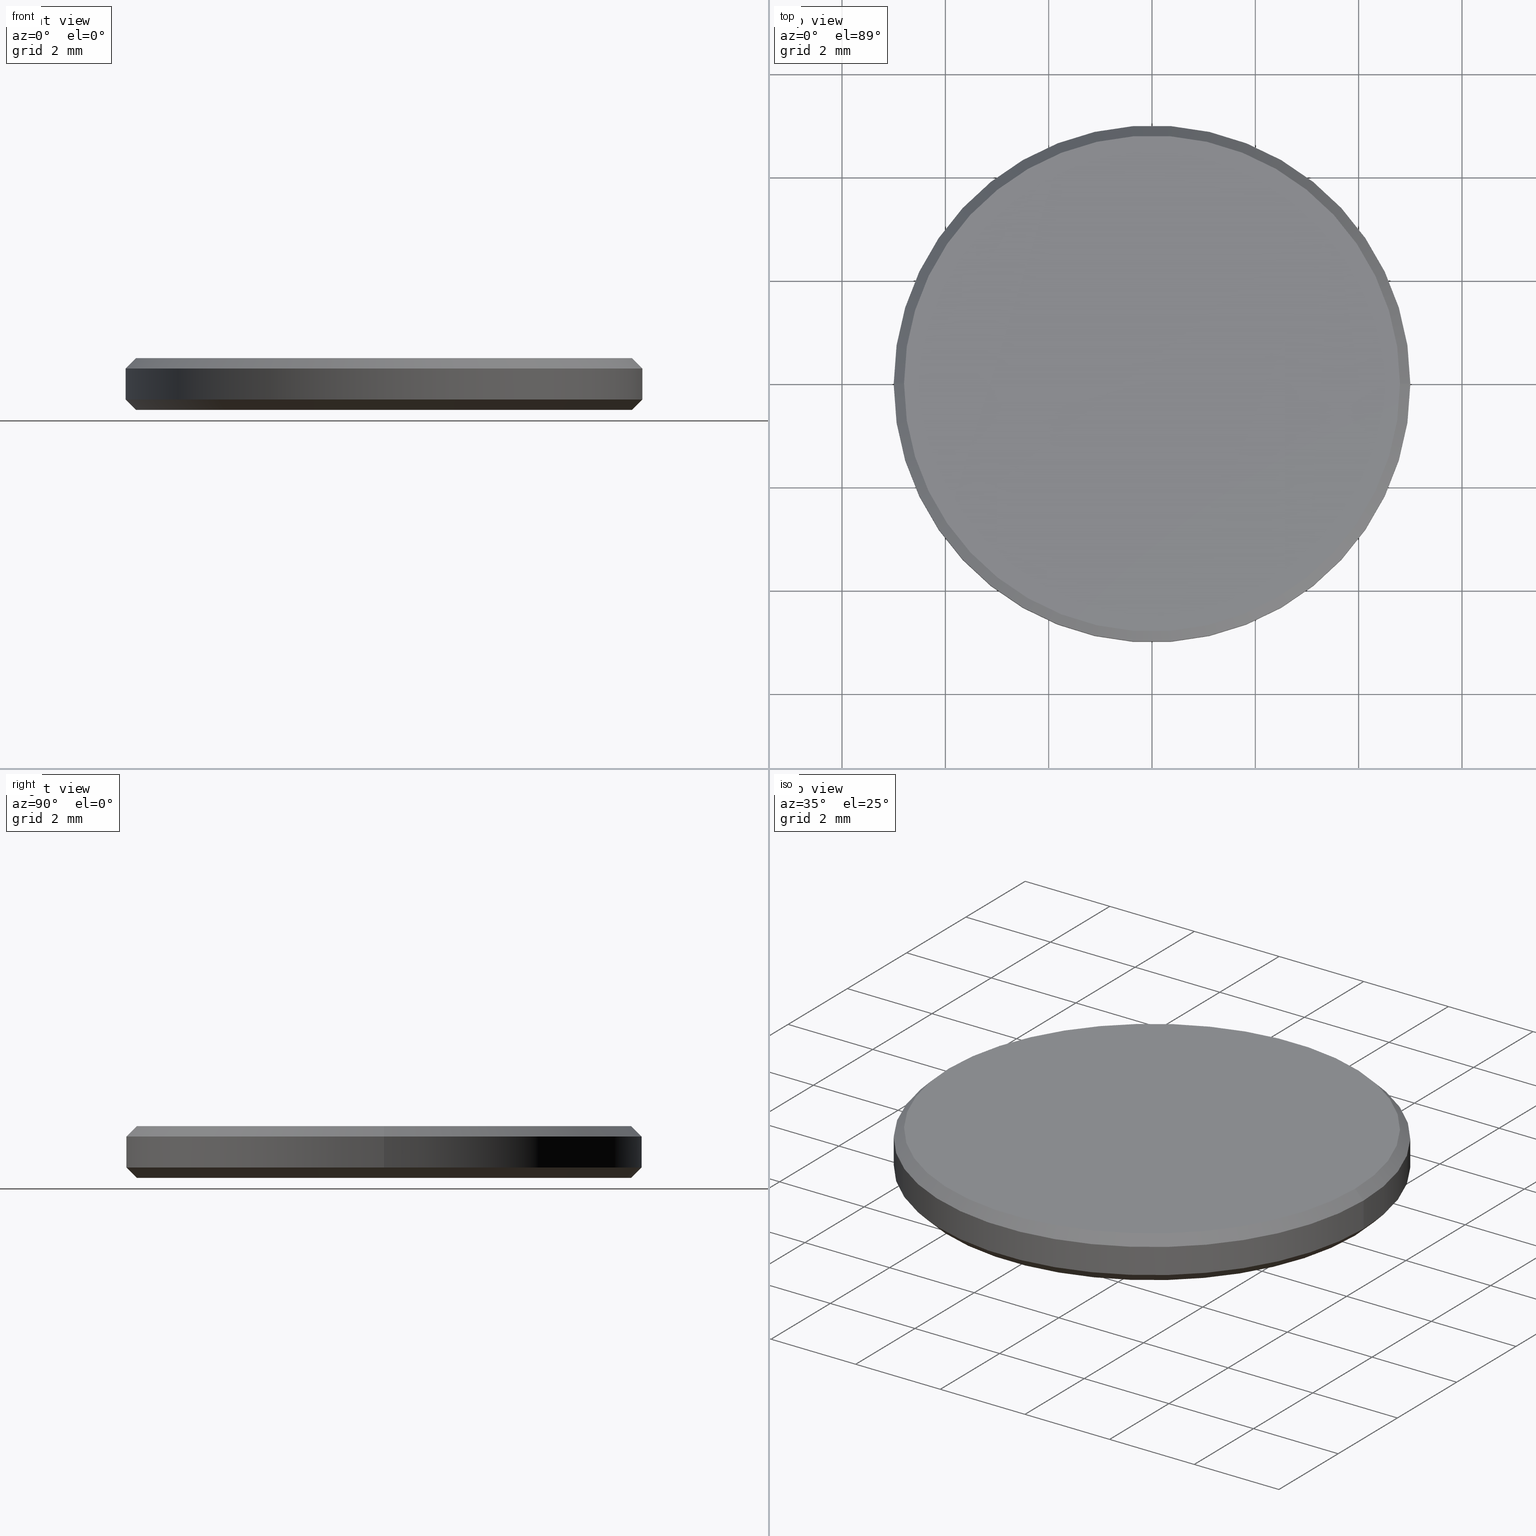
[diagram: canonical four-view strip — front | top / right | iso, engineering-drawing reading convention]
A machine part, canonical four-view strip (front | top / right | iso — engineering-drawing reading convention). The complete STEP part file that produces these views, byte-faithful:
ISO-10303-21;
HEADER;
FILE_DESCRIPTION (( 'STEP AP214' ),
    '1' );
FILE_NAME ('GNIF-070-4680-D10.STEP',
    '2024-07-19T14:44:08',
    ( '' ),
    ( '' ),
    'SwSTEP 2.0',
    'SolidWorks 2022',
    '' );
FILE_SCHEMA (( 'AUTOMOTIVE_DESIGN' ));
ENDSEC;

DATA;
#1 = CIRCLE ( 'NONE', #95, 5.000000000000000000 ) ;
#2 = ADVANCED_FACE ( 'NONE', ( #70 ), #137, .T. ) ;
#3 = DIRECTION ( 'NONE',  ( 0.000000000000000000, 0.000000000000000000, 1.000000000000000000 ) ) ;
#4 = PRESENTATION_STYLE_ASSIGNMENT (( #38 ) ) ;
#5 =( LENGTH_UNIT ( ) NAMED_UNIT ( * ) SI_UNIT ( .MILLI., .METRE. ) );
#6 = AXIS2_PLACEMENT_3D ( 'NONE', #80, #127, #113 ) ;
#7 = ADVANCED_FACE ( 'NONE', ( #93 ), #164, .T. ) ;
#8 =( LENGTH_UNIT ( ) NAMED_UNIT ( * ) SI_UNIT ( .MILLI., .METRE. ) );
#9 = ADVANCED_BREP_SHAPE_REPRESENTATION ( 'GNIF-070-4680-D10', ( #129, #53 ), #83 ) ;
#10 = EDGE_CURVE ( 'NONE', #31, #140, #55, .T. ) ;
#11 = DIRECTION ( 'NONE',  ( -0.000000000000000000, -0.000000000000000000, 1.000000000000000000 ) ) ;
#12 = VERTEX_POINT ( 'NONE', #229 ) ;
#13 = CARTESIAN_POINT ( 'NONE',  ( 0.000000000000000000, 0.000000000000000000, 0.1999999999999996503 ) ) ;
#14 = ORIENTED_EDGE ( 'NONE', *, *, #40, .F. ) ;
#15 = CARTESIAN_POINT ( 'NONE',  ( 0.000000000000000000, 0.000000000000000000, 1.000000000000000000 ) ) ;
#16 = ORIENTED_EDGE ( 'NONE', *, *, #185, .F. ) ;
#17 = DIRECTION ( 'NONE',  ( 1.000000000000000000, 0.000000000000000000, 0.000000000000000000 ) ) ;
#18 = EDGE_LOOP ( 'NONE', ( #67, #182, #162, #105 ) ) ;
#19 = PRODUCT_DEFINITION ( 'δ֪', '', #195, #84 ) ;
#20 = AXIS2_PLACEMENT_3D ( 'NONE', #79, #98, #36 ) ;
#21 = DIRECTION ( 'NONE',  ( -0.000000000000000000, -0.000000000000000000, -1.000000000000000000 ) ) ;
#22 = FILL_AREA_STYLE ('',( #59 ) ) ;
#23 = LINE ( 'NONE', #226, #158 ) ;
#24 = CONICAL_SURFACE ( 'NONE', #193, 5.000000000000000000, 0.7853981633974503884 ) ;
#25 = CARTESIAN_POINT ( 'NONE',  ( 0.000000000000000000, 0.000000000000000000, 1.000000000000000000 ) ) ;
#26 = EDGE_CURVE ( 'NONE', #140, #31, #94, .T. ) ;
#27 = DIRECTION ( 'NONE',  ( 1.000000000000000000, 0.000000000000000000, 0.000000000000000000 ) ) ;
#28 = CARTESIAN_POINT ( 'NONE',  ( -4.800000000000002487, 0.000000000000000000, 1.000000000000000000 ) ) ;
#29 = VERTEX_POINT ( 'NONE', #228 ) ;
#30 = ORIENTED_EDGE ( 'NONE', *, *, #183, .T. ) ;
#31 = VERTEX_POINT ( 'NONE', #169 ) ;
#32 = EDGE_LOOP ( 'NONE', ( #205, #106 ) ) ;
#33 = VECTOR ( 'NONE', #206, 1000.000000000000000 ) ;
#34 = DIRECTION ( 'NONE',  ( -0.000000000000000000, -0.000000000000000000, -1.000000000000000000 ) ) ;
#35 = CIRCLE ( 'NONE', #151, 4.800000000000002487 ) ;
#36 = DIRECTION ( 'NONE',  ( 1.000000000000000000, 0.000000000000000000, 0.000000000000000000 ) ) ;
#37 = CARTESIAN_POINT ( 'NONE',  ( 5.000000000000000000, 6.123233995736766282E-16, 1.000000000000000000 ) ) ;
#38 = SURFACE_STYLE_USAGE ( .BOTH. , #211 ) ;
#39 = DIRECTION ( 'NONE',  ( -0.000000000000000000, -0.000000000000000000, -1.000000000000000000 ) ) ;
#40 = EDGE_CURVE ( 'NONE', #123, #12, #223, .T. ) ;
#41 = DIRECTION ( 'NONE',  ( -1.000000000000000000, 0.000000000000000000, 0.000000000000000000 ) ) ;
#42 = UNCERTAINTY_MEASURE_WITH_UNIT (LENGTH_MEASURE( 1.000000000000000082E-05 ), #168, 'distance_accuracy_value', 'NONE');
#43 = CARTESIAN_POINT ( 'NONE',  ( 5.000000000000000000, 0.000000000000000000, 0.1999999999999996503 ) ) ;
#44 = DIRECTION ( 'NONE',  ( 1.000000000000000000, 0.000000000000000000, 0.000000000000000000 ) ) ;
#45 = PRESENTATION_STYLE_ASSIGNMENT (( #64 ) ) ;
#46 = VERTEX_POINT ( 'NONE', #61 ) ;
#47 = STYLED_ITEM ( 'NONE', ( #45 ), #9 ) ;
#48 = EDGE_CURVE ( 'NONE', #46, #163, #121, .T. ) ;
#49 = ORIENTED_EDGE ( 'NONE', *, *, #102, .F. ) ;
#50 = ORIENTED_EDGE ( 'NONE', *, *, #172, .T. ) ;
#51 = ADVANCED_FACE ( 'NONE', ( #188 ), #128, .T. ) ;
#52 = AXIS2_PLACEMENT_3D ( 'NONE', #181, #232, #233 ) ;
#53 = AXIS2_PLACEMENT_3D ( 'NONE', #186, #204, #17 ) ;
#54 = CARTESIAN_POINT ( 'NONE',  ( 0.000000000000000000, 0.000000000000000000, 0.000000000000000000 ) ) ;
#55 = CIRCLE ( 'NONE', #6, 5.000000000000000000 ) ;
#56 = DIRECTION ( 'NONE',  ( 1.000000000000000000, 0.000000000000000000, -0.000000000000000000 ) ) ;
#57 =( GEOMETRIC_REPRESENTATION_CONTEXT ( 3 ) GLOBAL_UNCERTAINTY_ASSIGNED_CONTEXT ( ( #174 ) ) GLOBAL_UNIT_ASSIGNED_CONTEXT ( ( #8, #200, #239 ) ) REPRESENTATION_CONTEXT ( 'NONE', 'WORKASPACE' ) );
#58 = DIRECTION ( 'NONE',  ( -1.000000000000000000, 0.000000000000000000, 0.000000000000000000 ) ) ;
#59 = FILL_AREA_STYLE_COLOUR ( '', #170 ) ;
#60 = EDGE_CURVE ( 'NONE', #163, #46, #35, .T. ) ;
#61 = CARTESIAN_POINT ( 'NONE',  ( -4.800000000000002487, 0.000000000000000000, 1.000000000000000000 ) ) ;
#62 = VECTOR ( 'NONE', #118, 1000.000000000000114 ) ;
#63 = CARTESIAN_POINT ( 'NONE',  ( 0.000000000000000000, 0.000000000000000000, 1.000000000000000000 ) ) ;
#64 = SURFACE_STYLE_USAGE ( .BOTH. , #101 ) ;
#65 = SURFACE_STYLE_FILL_AREA ( #155 ) ;
#66 = CARTESIAN_POINT ( 'NONE',  ( 0.000000000000000000, 0.000000000000000000, 0.000000000000000000 ) ) ;
#67 = ORIENTED_EDGE ( 'NONE', *, *, #60, .F. ) ;
#68 = DIRECTION ( 'NONE',  ( 0.000000000000000000, 0.000000000000000000, -1.000000000000000000 ) ) ;
#69 = EDGE_CURVE ( 'NONE', #140, #220, #171, .T. ) ;
#70 = FACE_OUTER_BOUND ( 'NONE', #136, .T. ) ;
#71 = CLOSED_SHELL ( 'NONE', ( #134, #210, #51, #2, #7, #234, #90, #156 ) ) ;
#72 = AXIS2_PLACEMENT_3D ( 'NONE', #216, #100, #198 ) ;
#73 = ORIENTED_EDGE ( 'NONE', *, *, #201, .F. ) ;
#74 = ORIENTED_EDGE ( 'NONE', *, *, #40, .T. ) ;
#75 = CIRCLE ( 'NONE', #104, 4.799999999999999822 ) ;
#76 = CARTESIAN_POINT ( 'NONE',  ( -5.000000000000000000, 0.000000000000000000, 1.000000000000000000 ) ) ;
#77 = PRODUCT_CONTEXT ( 'NONE', #178, 'mechanical' ) ;
#78 = CARTESIAN_POINT ( 'NONE',  ( 0.000000000000000000, 0.000000000000000000, 0.1999999999999996503 ) ) ;
#79 = CARTESIAN_POINT ( 'NONE',  ( 0.000000000000000000, 0.000000000000000000, 1.000000000000000000 ) ) ;
#80 = CARTESIAN_POINT ( 'NONE',  ( 0.000000000000000000, 0.000000000000000000, 0.8000000000000012657 ) ) ;
#81 = FACE_OUTER_BOUND ( 'NONE', #120, .T. ) ;
#82 = STYLED_ITEM ( 'NONE', ( #4 ), #129 ) ;
#83 =( GEOMETRIC_REPRESENTATION_CONTEXT ( 3 ) GLOBAL_UNCERTAINTY_ASSIGNED_CONTEXT ( ( #132 ) ) GLOBAL_UNIT_ASSIGNED_CONTEXT ( ( #5, #175, #154 ) ) REPRESENTATION_CONTEXT ( 'NONE', 'WORKASPACE' ) );
#84 = PRODUCT_DEFINITION_CONTEXT ( 'detailed design', #187, 'design' ) ;
#85 = PRODUCT ( 'GNIF-070-4680-D10', 'GNIF-070-4680-D10', '', ( #77 ) ) ;
#86 = FILL_AREA_STYLE_COLOUR ( '', #153 ) ;
#87 = PLANE ( 'NONE',  #72 ) ;
#88 = ORIENTED_EDGE ( 'NONE', *, *, #172, .F. ) ;
#89 = LINE ( 'NONE', #28, #62 ) ;
#90 = ADVANCED_FACE ( 'NONE', ( #192 ), #215, .T. ) ;
#91 = ORIENTED_EDGE ( 'NONE', *, *, #26, .F. ) ;
#92 = ORIENTED_EDGE ( 'NONE', *, *, #185, .T. ) ;
#93 = FACE_OUTER_BOUND ( 'NONE', #32, .T. ) ;
#94 = CIRCLE ( 'NONE', #230, 5.000000000000000000 ) ;
#95 = AXIS2_PLACEMENT_3D ( 'NONE', #13, #161, #27 ) ;
#96 = DIRECTION ( 'NONE',  ( -1.000000000000000000, 0.000000000000000000, 0.000000000000000000 ) ) ;
#97 = DIRECTION ( 'NONE',  ( 1.000000000000000000, 0.000000000000000000, 0.000000000000000000 ) ) ;
#98 = DIRECTION ( 'NONE',  ( 0.000000000000000000, 0.000000000000000000, 1.000000000000000000 ) ) ;
#99 = DIRECTION ( 'NONE',  ( 0.7071067811865460184, 8.659560562354913137E-17, -0.7071067811865489050 ) ) ;
#100 = DIRECTION ( 'NONE',  ( 0.000000000000000000, 0.000000000000000000, 1.000000000000000000 ) ) ;
#101 = SURFACE_SIDE_STYLE ('',( #65 ) ) ;
#102 = EDGE_CURVE ( 'NONE', #163, #140, #209, .T. ) ;
#103 = ORIENTED_EDGE ( 'NONE', *, *, #119, .T. ) ;
#104 = AXIS2_PLACEMENT_3D ( 'NONE', #66, #196, #44 ) ;
#105 = ORIENTED_EDGE ( 'NONE', *, *, #150, .F. ) ;
#106 = ORIENTED_EDGE ( 'NONE', *, *, #60, .T. ) ;
#107 = DIRECTION ( 'NONE',  ( -1.000000000000000000, 0.000000000000000000, 0.000000000000000000 ) ) ;
#108 = ORIENTED_EDGE ( 'NONE', *, *, #48, .F. ) ;
#109 = DIRECTION ( 'NONE',  ( 1.000000000000000000, 0.000000000000000000, 0.000000000000000000 ) ) ;
#110 = APPLICATION_PROTOCOL_DEFINITION ( 'draft international standard', 'automotive_design', 1998, #187 ) ;
#111 = MECHANICAL_DESIGN_GEOMETRIC_PRESENTATION_REPRESENTATION (  '', ( #82 ), #166 ) ;
#112 = PRODUCT_RELATED_PRODUCT_CATEGORY ( 'part', '', ( #85 ) ) ;
#113 = DIRECTION ( 'NONE',  ( 1.000000000000000000, 0.000000000000000000, 0.000000000000000000 ) ) ;
#114 = SHAPE_DEFINITION_REPRESENTATION ( #176, #9 ) ;
#115 = CONICAL_SURFACE ( 'NONE', #173, 5.000000000000000000, 0.7853981633974503884 ) ;
#116 = CARTESIAN_POINT ( 'NONE',  ( 0.000000000000000000, 0.000000000000000000, 1.000000000000000000 ) ) ;
#117 = CARTESIAN_POINT ( 'NONE',  ( 4.800000000000002487, 6.000769315822031726E-16, 1.000000000000000000 ) ) ;
#118 = DIRECTION ( 'NONE',  ( -0.7071067811865460184, 0.000000000000000000, -0.7071067811865489050 ) ) ;
#119 = EDGE_CURVE ( 'NONE', #31, #29, #125, .T. ) ;
#120 = EDGE_LOOP ( 'NONE', ( #14, #165, #88, #184 ) ) ;
#121 = CIRCLE ( 'NONE', #20, 4.800000000000002487 ) ;
#122 = CONICAL_SURFACE ( 'NONE', #139, 4.800000000000002487, 0.7853981633974461696 ) ;
#123 = VERTEX_POINT ( 'NONE', #213 ) ;
#124 = ORIENTED_EDGE ( 'NONE', *, *, #69, .F. ) ;
#125 = LINE ( 'NONE', #76, #33 ) ;
#126 = CARTESIAN_POINT ( 'NONE',  ( 0.000000000000000000, 0.000000000000000000, 0.8000000000000012657 ) ) ;
#127 = DIRECTION ( 'NONE',  ( 0.000000000000000000, 0.000000000000000000, -1.000000000000000000 ) ) ;
#128 = CYLINDRICAL_SURFACE ( 'NONE', #212, 5.000000000000000000 ) ;
#129 = MANIFOLD_SOLID_BREP ( '����1', #71 ) ;
#130 = CARTESIAN_POINT ( 'NONE',  ( 0.000000000000000000, 0.000000000000000000, 1.000000000000000000 ) ) ;
#131 = FACE_OUTER_BOUND ( 'NONE', #18, .T. ) ;
#132 = UNCERTAINTY_MEASURE_WITH_UNIT (LENGTH_MEASURE( 1.000000000000000082E-05 ), #5, 'distance_accuracy_value', 'NONE');
#133 = FACE_OUTER_BOUND ( 'NONE', #160, .T. ) ;
#134 = ADVANCED_FACE ( 'NONE', ( #81 ), #24, .T. ) ;
#135 = CARTESIAN_POINT ( 'NONE',  ( 5.000000000000000000, 6.123233995736766282E-16, 0.1999999999999996503 ) ) ;
#136 = EDGE_LOOP ( 'NONE', ( #124, #235, #103, #202 ) ) ;
#137 = CYLINDRICAL_SURFACE ( 'NONE', #138, 5.000000000000000000 ) ;
#138 = AXIS2_PLACEMENT_3D ( 'NONE', #15, #34, #107 ) ;
#139 = AXIS2_PLACEMENT_3D ( 'NONE', #63, #68, #41 ) ;
#140 = VERTEX_POINT ( 'NONE', #146 ) ;
#141 = CARTESIAN_POINT ( 'NONE',  ( 0.000000000000000000, 0.000000000000000000, 1.000000000000000000 ) ) ;
#142 = VECTOR ( 'NONE', #39, 1000.000000000000000 ) ;
#143 = EDGE_CURVE ( 'NONE', #123, #29, #23, .T. ) ;
#144 = VECTOR ( 'NONE', #214, 1000.000000000000000 ) ;
#145 = SURFACE_STYLE_FILL_AREA ( #22 ) ;
#146 = CARTESIAN_POINT ( 'NONE',  ( 5.000000000000000000, 6.123233995736766282E-16, 0.8000000000000012657 ) ) ;
#147 =( NAMED_UNIT ( * ) SI_UNIT ( $, .STERADIAN. ) SOLID_ANGLE_UNIT ( ) );
#148 = DIRECTION ( 'NONE',  ( 1.000000000000000000, 0.000000000000000000, 0.000000000000000000 ) ) ;
#149 = DIRECTION ( 'NONE',  ( -0.000000000000000000, -0.000000000000000000, 1.000000000000000000 ) ) ;
#150 = EDGE_CURVE ( 'NONE', #46, #31, #89, .T. ) ;
#151 = AXIS2_PLACEMENT_3D ( 'NONE', #130, #3, #97 ) ;
#152 = PRESENTATION_LAYER_ASSIGNMENT (  '', '', ( #82 ) ) ;
#153 = COLOUR_RGB ( '',1.000000000000000000, 1.000000000000000000, 1.000000000000000000 ) ;
#154 =( NAMED_UNIT ( * ) SI_UNIT ( $, .STERADIAN. ) SOLID_ANGLE_UNIT ( ) );
#155 = FILL_AREA_STYLE ('',( #86 ) ) ;
#156 = ADVANCED_FACE ( 'NONE', ( #133 ), #115, .T. ) ;
#157 = CARTESIAN_POINT ( 'NONE',  ( 0.000000000000000000, 0.000000000000000000, 0.1999999999999996503 ) ) ;
#158 = VECTOR ( 'NONE', #197, 1000.000000000000000 ) ;
#159 = APPLICATION_PROTOCOL_DEFINITION ( 'draft international standard', 'automotive_design', 1998, #178 ) ;
#160 = EDGE_LOOP ( 'NONE', ( #221, #16, #30, #73 ) ) ;
#161 = DIRECTION ( 'NONE',  ( -0.000000000000000000, -0.000000000000000000, 1.000000000000000000 ) ) ;
#162 = ORIENTED_EDGE ( 'NONE', *, *, #10, .F. ) ;
#163 = VERTEX_POINT ( 'NONE', #117 ) ;
#164 = PLANE ( 'NONE',  #218 ) ;
#165 = ORIENTED_EDGE ( 'NONE', *, *, #143, .T. ) ;
#166 =( GEOMETRIC_REPRESENTATION_CONTEXT ( 3 ) GLOBAL_UNCERTAINTY_ASSIGNED_CONTEXT ( ( #42 ) ) GLOBAL_UNIT_ASSIGNED_CONTEXT ( ( #168, #191, #147 ) ) REPRESENTATION_CONTEXT ( 'NONE', 'WORKASPACE' ) );
#167 = DIRECTION ( 'NONE',  ( 0.000000000000000000, 0.000000000000000000, -1.000000000000000000 ) ) ;
#168 =( LENGTH_UNIT ( ) NAMED_UNIT ( * ) SI_UNIT ( .MILLI., .METRE. ) );
#169 = CARTESIAN_POINT ( 'NONE',  ( -5.000000000000000000, 0.000000000000000000, 0.8000000000000012657 ) ) ;
#170 = COLOUR_RGB ( '',1.000000000000000000, 1.000000000000000000, 1.000000000000000000 ) ;
#171 = LINE ( 'NONE', #37, #142 ) ;
#172 = EDGE_CURVE ( 'NONE', #220, #29, #207, .T. ) ;
#173 = AXIS2_PLACEMENT_3D ( 'NONE', #157, #11, #231 ) ;
#174 = UNCERTAINTY_MEASURE_WITH_UNIT (LENGTH_MEASURE( 1.000000000000000082E-05 ), #8, 'distance_accuracy_value', 'NONE');
#175 =( NAMED_UNIT ( * ) PLANE_ANGLE_UNIT ( ) SI_UNIT ( $, .RADIAN. ) );
#176 = PRODUCT_DEFINITION_SHAPE ( 'NONE', 'NONE',  #19 ) ;
#177 = FACE_OUTER_BOUND ( 'NONE', #217, .T. ) ;
#178 = APPLICATION_CONTEXT ( 'automotive_design' ) ;
#179 = AXIS2_PLACEMENT_3D ( 'NONE', #54, #21, #225 ) ;
#180 = ORIENTED_EDGE ( 'NONE', *, *, #69, .T. ) ;
#181 = CARTESIAN_POINT ( 'NONE',  ( 0.000000000000000000, 0.000000000000000000, 0.1999999999999996503 ) ) ;
#182 = ORIENTED_EDGE ( 'NONE', *, *, #102, .T. ) ;
#183 = EDGE_CURVE ( 'NONE', #12, #220, #236, .T. ) ;
#184 = ORIENTED_EDGE ( 'NONE', *, *, #183, .F. ) ;
#185 = EDGE_CURVE ( 'NONE', #12, #123, #75, .T. ) ;
#186 = CARTESIAN_POINT ( 'NONE',  ( 0.000000000000000000, 0.000000000000000000, 0.000000000000000000 ) ) ;
#187 = APPLICATION_CONTEXT ( 'automotive_design' ) ;
#188 = FACE_OUTER_BOUND ( 'NONE', #199, .T. ) ;
#189 = PRESENTATION_LAYER_ASSIGNMENT (  '', '', ( #47 ) ) ;
#190 = VECTOR ( 'NONE', #99, 1000.000000000000114 ) ;
#191 =( NAMED_UNIT ( * ) PLANE_ANGLE_UNIT ( ) SI_UNIT ( $, .RADIAN. ) );
#192 = FACE_OUTER_BOUND ( 'NONE', #237, .T. ) ;
#193 = AXIS2_PLACEMENT_3D ( 'NONE', #78, #149, #109 ) ;
#194 = DIRECTION ( 'NONE',  ( -0.000000000000000000, -0.000000000000000000, -1.000000000000000000 ) ) ;
#195 = PRODUCT_DEFINITION_FORMATION_WITH_SPECIFIED_SOURCE ( '�κ�', '', #85, .NOT_KNOWN. ) ;
#196 = DIRECTION ( 'NONE',  ( -0.000000000000000000, -0.000000000000000000, -1.000000000000000000 ) ) ;
#197 = DIRECTION ( 'NONE',  ( -0.7071067811865490160, 8.659560562354950115E-17, 0.7071067811865459074 ) ) ;
#198 = DIRECTION ( 'NONE',  ( 1.000000000000000000, 0.000000000000000000, -0.000000000000000000 ) ) ;
#199 = EDGE_LOOP ( 'NONE', ( #240, #180, #50, #203 ) ) ;
#200 =( NAMED_UNIT ( * ) PLANE_ANGLE_UNIT ( ) SI_UNIT ( $, .RADIAN. ) );
#201 = EDGE_CURVE ( 'NONE', #29, #220, #1, .T. ) ;
#202 = ORIENTED_EDGE ( 'NONE', *, *, #201, .T. ) ;
#203 = ORIENTED_EDGE ( 'NONE', *, *, #119, .F. ) ;
#204 = DIRECTION ( 'NONE',  ( 0.000000000000000000, 0.000000000000000000, 1.000000000000000000 ) ) ;
#205 = ORIENTED_EDGE ( 'NONE', *, *, #48, .T. ) ;
#206 = DIRECTION ( 'NONE',  ( -0.000000000000000000, -0.000000000000000000, -1.000000000000000000 ) ) ;
#207 = CIRCLE ( 'NONE', #52, 5.000000000000000000 ) ;
#208 = CARTESIAN_POINT ( 'NONE',  ( 4.800000000000002487, 5.878304635907297169E-16, 1.000000000000000000 ) ) ;
#209 = LINE ( 'NONE', #208, #190 ) ;
#210 = ADVANCED_FACE ( 'NONE', ( #131 ), #122, .T. ) ;
#211 = SURFACE_SIDE_STYLE ('',( #145 ) ) ;
#212 = AXIS2_PLACEMENT_3D ( 'NONE', #25, #194, #96 ) ;
#213 = CARTESIAN_POINT ( 'NONE',  ( -4.799999999999999822, 6.000769315822029754E-16, 0.000000000000000000 ) ) ;
#214 = DIRECTION ( 'NONE',  ( 0.7071067811865490160, 0.000000000000000000, 0.7071067811865459074 ) ) ;
#215 = CONICAL_SURFACE ( 'NONE', #224, 4.800000000000002487, 0.7853981633974461696 ) ;
#216 = CARTESIAN_POINT ( 'NONE',  ( 0.000000000000000000, 0.000000000000000000, 0.000000000000000000 ) ) ;
#217 = EDGE_LOOP ( 'NONE', ( #92, #74 ) ) ;
#218 = AXIS2_PLACEMENT_3D ( 'NONE', #141, #222, #56 ) ;
#219 = MECHANICAL_DESIGN_GEOMETRIC_PRESENTATION_REPRESENTATION (  '', ( #47 ), #57 ) ;
#220 = VERTEX_POINT ( 'NONE', #135 ) ;
#221 = ORIENTED_EDGE ( 'NONE', *, *, #143, .F. ) ;
#222 = DIRECTION ( 'NONE',  ( 0.000000000000000000, 0.000000000000000000, 1.000000000000000000 ) ) ;
#223 = CIRCLE ( 'NONE', #179, 4.799999999999999822 ) ;
#224 = AXIS2_PLACEMENT_3D ( 'NONE', #116, #167, #58 ) ;
#225 = DIRECTION ( 'NONE',  ( 1.000000000000000000, 0.000000000000000000, 0.000000000000000000 ) ) ;
#226 = CARTESIAN_POINT ( 'NONE',  ( -5.000000000000000000, 6.123233995736765296E-16, 0.1999999999999996503 ) ) ;
#227 = DIRECTION ( 'NONE',  ( 0.000000000000000000, 0.000000000000000000, -1.000000000000000000 ) ) ;
#228 = CARTESIAN_POINT ( 'NONE',  ( -5.000000000000000000, 0.000000000000000000, 0.1999999999999996503 ) ) ;
#229 = CARTESIAN_POINT ( 'NONE',  ( 4.799999999999999822, 0.000000000000000000, 0.000000000000000000 ) ) ;
#230 = AXIS2_PLACEMENT_3D ( 'NONE', #126, #227, #148 ) ;
#231 = DIRECTION ( 'NONE',  ( 1.000000000000000000, 0.000000000000000000, 0.000000000000000000 ) ) ;
#232 = DIRECTION ( 'NONE',  ( -0.000000000000000000, -0.000000000000000000, 1.000000000000000000 ) ) ;
#233 = DIRECTION ( 'NONE',  ( 1.000000000000000000, 0.000000000000000000, 0.000000000000000000 ) ) ;
#234 = ADVANCED_FACE ( 'NONE', ( #177 ), #87, .F. ) ;
#235 = ORIENTED_EDGE ( 'NONE', *, *, #26, .T. ) ;
#236 = LINE ( 'NONE', #43, #144 ) ;
#237 = EDGE_LOOP ( 'NONE', ( #49, #108, #238, #91 ) ) ;
#238 = ORIENTED_EDGE ( 'NONE', *, *, #150, .T. ) ;
#239 =( NAMED_UNIT ( * ) SI_UNIT ( $, .STERADIAN. ) SOLID_ANGLE_UNIT ( ) );
#240 = ORIENTED_EDGE ( 'NONE', *, *, #10, .T. ) ;
ENDSEC;
END-ISO-10303-21;
